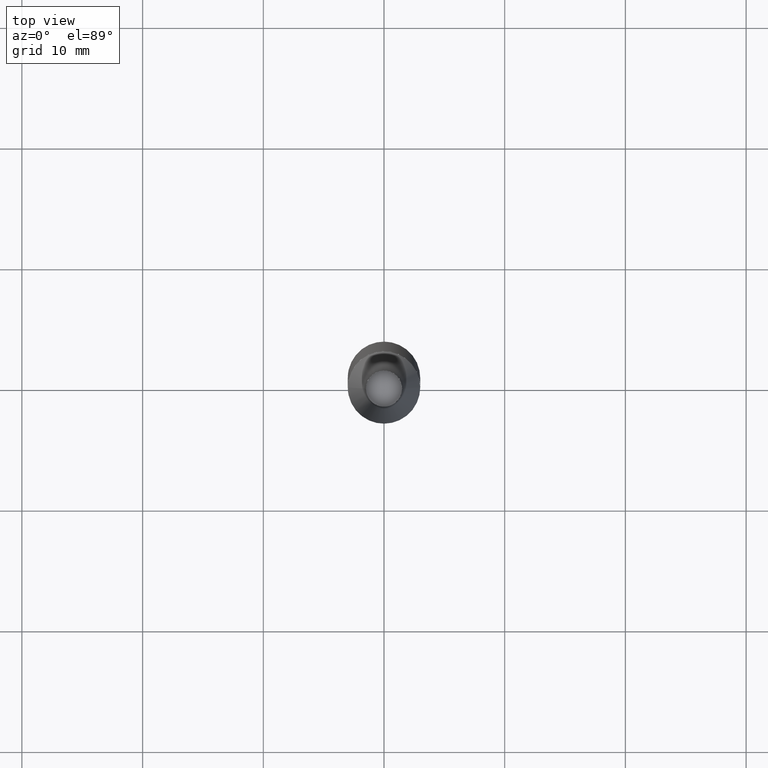
[diagram: clean part render]
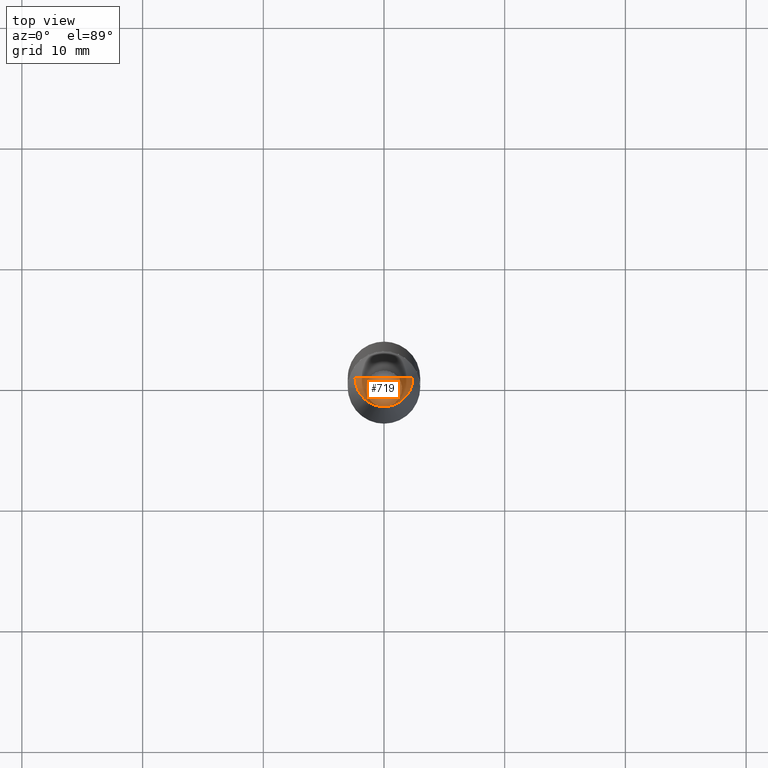
[diagram: same view with one face highlighted and labeled with its STEP entity id]
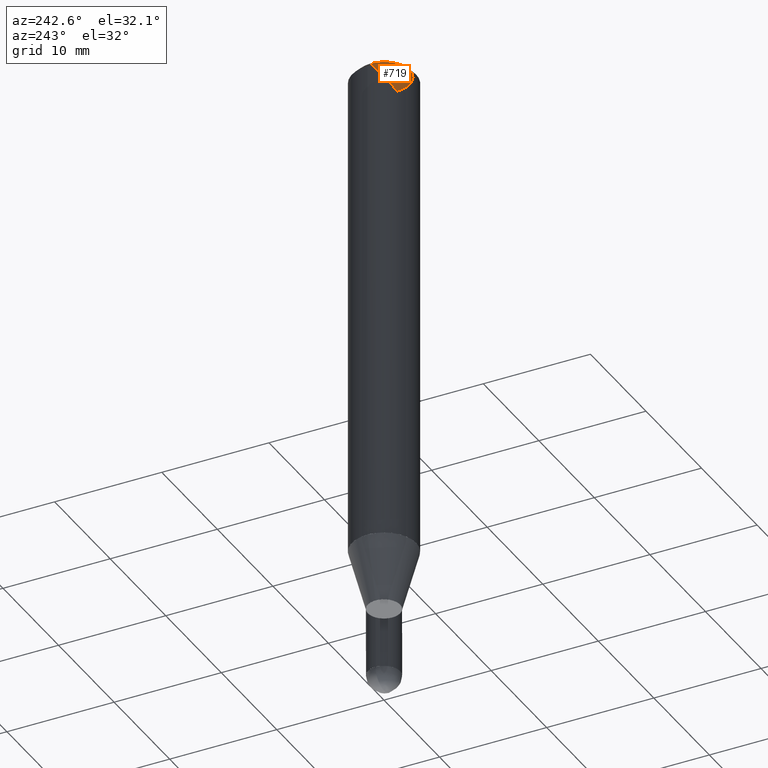
[diagram: same view with one face highlighted and labeled with its STEP entity id]
A machine part, top view. The second image highlights one B-rep face of the part: STEP entity #719.
A second angle (auxiliary view) of the same face is appended — the face is thin or edge-on in the first view.
In plain terms, the highlighted face is a freeform B-spline surface patch.
Its self-contained STEP definition (entity closure, byte-faithful):
#365=CARTESIAN_POINT('',(2.4,0.0,46.401));
#369=CARTESIAN_POINT('',(-2.4,0.0,46.401));
#370=CARTESIAN_POINT('',(0.0,0.0,46.401));
#380=CARTESIAN_POINT('',(-2.4,-2.4,46.401));
#381=CARTESIAN_POINT('',(0.0,-2.4,46.401));
#382=CARTESIAN_POINT('',(2.4,-2.4,46.401));
#704=(
BOUNDED_SURFACE()
B_SPLINE_SURFACE(1,2,(
(#369,#380,#381,#382,#365),
(#370,#370,#370,#370,#370)
), .UNSPECIFIED.,.F.,.F.,.F.)
B_SPLINE_SURFACE_WITH_KNOTS((2,2),(3,2,3),(
0.0,1.0),(
0.0,0.5,1.0), .UNSPECIFIED.)
GEOMETRIC_REPRESENTATION_ITEM()
RATIONAL_B_SPLINE_SURFACE(((1.0,0.707106781187,1.0,0.707106781187,1.0),
(1.0,0.707106781187,1.0,0.707106781187,1.0)
))
REPRESENTATION_ITEM('')
SURFACE()
);
#705=(
BOUNDED_CURVE()
B_SPLINE_CURVE(1,(#370,#365),.UNSPECIFIED.,.F.,.F.)
B_SPLINE_CURVE_WITH_KNOTS((2,2),
(0.0,1.0),.UNSPECIFIED.)
CURVE()
GEOMETRIC_REPRESENTATION_ITEM()
RATIONAL_B_SPLINE_CURVE((1.0,1.0))
REPRESENTATION_ITEM('')
);
#706=(
BOUNDED_CURVE()
B_SPLINE_CURVE(2,(#365,#382,#381,#380,#369),.UNSPECIFIED.,.F.,.F.)
B_SPLINE_CURVE_WITH_KNOTS((3,2,3),
(0.0,0.5,1.0),.UNSPECIFIED.)
CURVE()
GEOMETRIC_REPRESENTATION_ITEM()
RATIONAL_B_SPLINE_CURVE((1.0,0.707106781187,1.0,0.707106781187,1.0))
REPRESENTATION_ITEM('')
);
#707=(
BOUNDED_CURVE()
B_SPLINE_CURVE(1,(#369,#370),.UNSPECIFIED.,.F.,.F.)
B_SPLINE_CURVE_WITH_KNOTS((2,2),
(0.0,1.0),.UNSPECIFIED.)
CURVE()
GEOMETRIC_REPRESENTATION_ITEM()
RATIONAL_B_SPLINE_CURVE((1.0,1.0))
REPRESENTATION_ITEM('')
);
#708=VERTEX_POINT('',#365);
#709=VERTEX_POINT('',#369);
#710=VERTEX_POINT('',#370);
#711=EDGE_CURVE('',#710,#708,#705,.T.);
#712=EDGE_CURVE('',#708,#709,#706,.T.);
#713=EDGE_CURVE('',#709,#710,#707,.T.);
#714=ORIENTED_EDGE('',*,*,#711,.T.);
#715=ORIENTED_EDGE('',*,*,#712,.T.);
#716=ORIENTED_EDGE('',*,*,#713,.T.);
#717=EDGE_LOOP('',(#714,#715,#716));
#718=FACE_OUTER_BOUND('',#717,.T.);
#719=ADVANCED_FACE('',(#718),#704,.T.);